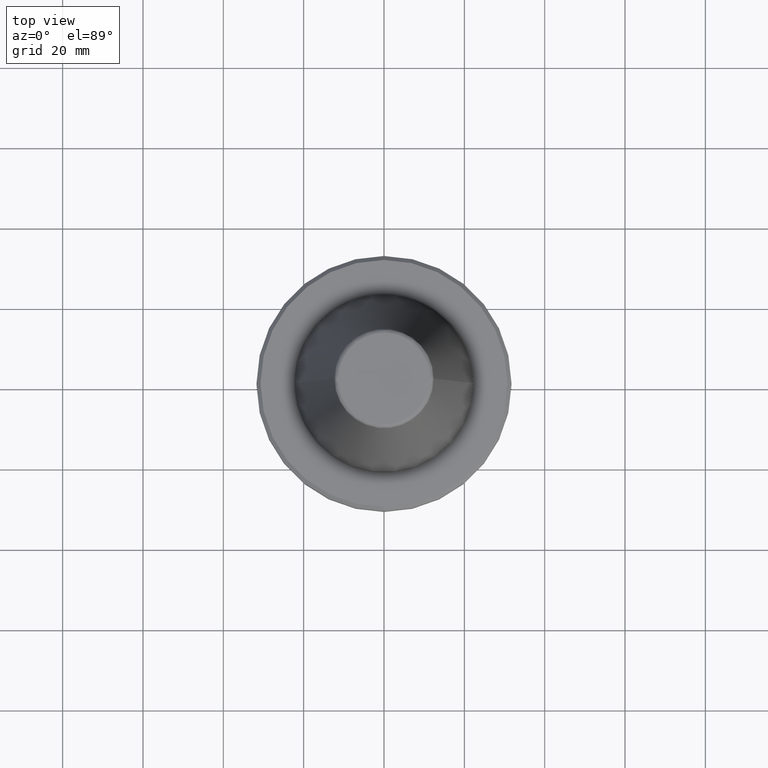
[diagram: clean part render]
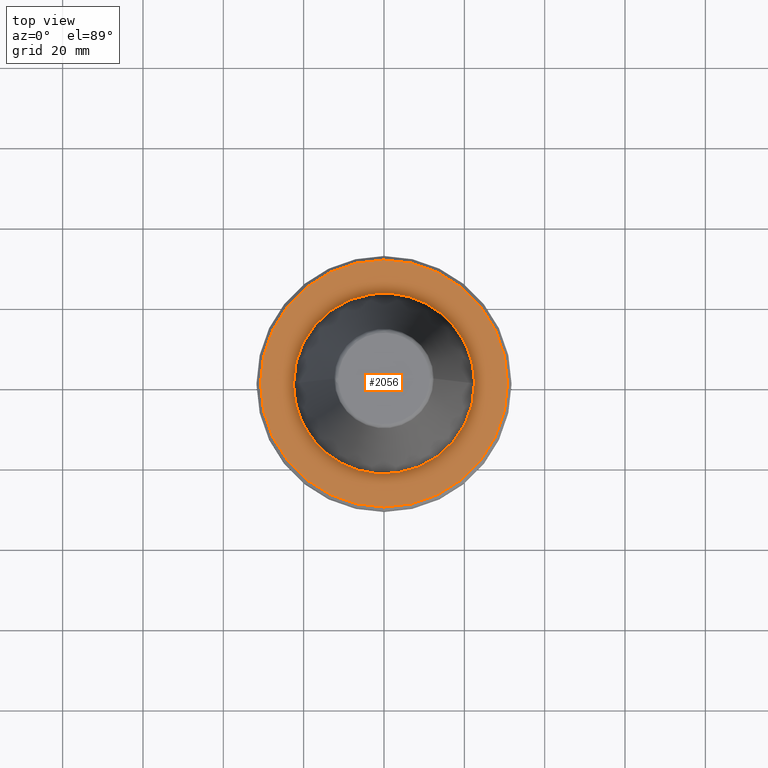
[diagram: same view with one face highlighted and labeled with its STEP entity id]
A machine part, top view. The second image highlights one B-rep face of the part: STEP entity #2056.
In plain terms, the highlighted planar face has unit normal (0, 0, 1).
Its self-contained STEP definition (entity closure, byte-faithful):
#1 = CARTESIAN_POINT ( 'NONE',  ( 14.22318295937180300, 17.43659746424819800, -3.200000000000000600 ) ) ;
#3 = EDGE_CURVE ( 'NONE', #1894, #1199, #2227, .T. ) ;
#7 = CARTESIAN_POINT ( 'NONE',  ( 1.874272475874807900, -22.49990891167531300, -3.199999999999999300 ) ) ;
#12 = CARTESIAN_POINT ( 'NONE',  ( -10.23608225737783100, -20.03737097317610600, -3.200000000000000600 ) ) ;
#22 = CARTESIAN_POINT ( 'NONE',  ( -18.01339103380583900, 13.48212992664963900, -3.200000000000000200 ) ) ;
#25 = CARTESIAN_POINT ( 'NONE',  ( -14.77594043886129600, -16.96826859199027000, -3.200000000000000600 ) ) ;
#30 = CARTESIAN_POINT ( 'NONE',  ( -19.65143601863855900, -10.96810366773100600, -3.200000000000000200 ) ) ;
#31 = CARTESIAN_POINT ( 'NONE',  ( -11.88795745103437800, 19.11175370232525900, -3.200000000000000600 ) ) ;
#39 = CARTESIAN_POINT ( 'NONE',  ( -21.56053025632894900, -6.433983443409778700, -3.200000000000000200 ) ) ;
#40 = CARTESIAN_POINT ( 'NONE',  ( 20.15581472172580400, 9.999824322189807500, -3.200000000000000600 ) ) ;
#42 = CARTESIAN_POINT ( 'NONE',  ( -21.73416896233421600, 5.823336603060638200, -3.200000000000001100 ) ) ;
#48 = CARTESIAN_POINT ( 'NONE',  ( -22.29881083994816000, -3.002206393018338000, -3.200000000000000200 ) ) ;
#51 = CARTESIAN_POINT ( 'NONE',  ( -15.80924125897873900, 16.01869097888760200, -3.200000000000000200 ) ) ;
#59 = CARTESIAN_POINT ( 'NONE',  ( -14.83168076082912800, 16.91956786132767100, -3.200000000000001100 ) ) ;
#75 = CARTESIAN_POINT ( 'NONE',  ( -17.52654519907798700, 14.13133141767754900, -3.200000000000000200 ) ) ;
#99 = CARTESIAN_POINT ( 'NONE',  ( -22.40251658625296500, 2.118301816843204400, -3.200000000000000600 ) ) ;
#113 = CARTESIAN_POINT ( 'NONE',  ( -1.874272475995127500, 22.49990891168126700, -3.200000000000000200 ) ) ;
#117 = DIRECTION ( 'NONE',  ( 1.000000000000000000, 0.0000000000000000000, 0.0000000000000000000 ) ) ;
#118 = CARTESIAN_POINT ( 'NONE',  ( -18.02676084524683400, 13.46424702288706000, -3.199999999999999700 ) ) ;
#120 = CARTESIAN_POINT ( 'NONE',  ( 20.21492483213524900, 9.879620109989831500, -3.199999999999999700 ) ) ;
#122 = CARTESIAN_POINT ( 'NONE',  ( -8.553837274049097800, 20.84572647129856200, -3.200000000000000600 ) ) ;
#126 = CARTESIAN_POINT ( 'NONE',  ( 20.88587219126078400, 8.411155772582882100, -3.199999999999999300 ) ) ;
#144 = CARTESIAN_POINT ( 'NONE',  ( 22.15105626390018400, 3.965161161150900800, -3.200000000000000600 ) ) ;
#146 = CARTESIAN_POINT ( 'NONE',  ( -18.18598887100287700, 13.24892083353980800, -3.200000000000000600 ) ) ;
#147 = CARTESIAN_POINT ( 'NONE',  ( 22.40251658625299300, -2.118301816863076900, -3.200000000000000600 ) ) ;
#148 = CARTESIAN_POINT ( 'NONE',  ( -5.923004140375720500, 21.70694875912321500, -3.200000000000001100 ) ) ;
#155 = CARTESIAN_POINT ( 'NONE',  ( -20.28558261285513700, 9.733848131031008300, -3.200000000000000200 ) ) ;
#158 = CARTESIAN_POINT ( 'NONE',  ( 21.61971726659115600, -6.232017541421557300, -3.200000000000000600 ) ) ;
#168 = CARTESIAN_POINT ( 'NONE',  ( -14.92426961778352300, 16.83806347620183200, -3.200000000000001100 ) ) ;
#172 = CARTESIAN_POINT ( 'NONE',  ( 19.91188554786599200, -10.50132822629440100, -3.200000000000000200 ) ) ;
#173 = CARTESIAN_POINT ( 'NONE',  ( -5.758433452790433700, 21.75072157107093300, -3.200000000000000600 ) ) ;
#177 = CARTESIAN_POINT ( 'NONE',  ( -11.24417045224493400, 19.49108947155319900, -3.200000000000000600 ) ) ;
#179 = CARTESIAN_POINT ( 'NONE',  ( 15.30853000358278800, -16.49149667822699800, -3.200000000000000200 ) ) ;
#184 = CARTESIAN_POINT ( 'NONE',  ( 10.63549455148346600, -19.82768002980847300, -3.200000000000000200 ) ) ;
#185 = CARTESIAN_POINT ( 'NONE',  ( -3.721873055559534700, 22.26913961060540000, -3.200000000000000600 ) ) ;
#191 = CARTESIAN_POINT ( 'NONE',  ( -16.77076916737731300, 15.03633683038554200, -3.199999999999999700 ) ) ;
#193 = CARTESIAN_POINT ( 'NONE',  ( -2.332296108668795200, -22.41354124015830300, -3.200000000000000600 ) ) ;
#199 = CIRCLE ( 'NONE', #367, 30.74999999999994300 ) ;
#200 = CARTESIAN_POINT ( 'NONE',  ( -10.48783044521363500, -19.90618404016972000, -3.200000000000000600 ) ) ;
#206 = CARTESIAN_POINT ( 'NONE',  ( -16.23569155790457700, -15.61257527347668500, -3.199999999999999700 ) ) ;
#207 = CARTESIAN_POINT ( 'NONE',  ( 4.741533393613382300, 21.99703006162735600, -3.200000000000000600 ) ) ;
#211 = CARTESIAN_POINT ( 'NONE',  ( -13.13908696945949100, 18.30062997010878000, -3.200000000000001500 ) ) ;
#212 = CARTESIAN_POINT ( 'NONE',  ( -20.08612291262865700, -10.13961104775827400, -3.200000000000000600 ) ) ;
#223 = CARTESIAN_POINT ( 'NONE',  ( -21.58879054375144000, -6.338307648393777200, -3.200000000000000200 ) ) ;
#226 = CARTESIAN_POINT ( 'NONE',  ( -5.756711388894503100E-034, 30.74999999999994300, -3.200000000000036100 ) ) ;
#228 = DIRECTION ( 'NONE',  ( -0.0000000000000000000, -0.0000000000000000000, 1.000000000000000000 ) ) ;
#230 = CARTESIAN_POINT ( 'NONE',  ( -22.49999999919336000, -1.000383764504606100, -3.200000000000000200 ) ) ;
#231 = CARTESIAN_POINT ( 'NONE',  ( 5.140381900332371000, 21.90551747792822100, -3.200000000000000200 ) ) ;
#233 = CARTESIAN_POINT ( 'NONE',  ( -20.22960712465749800, 9.849522785651704000, -3.199999999999998800 ) ) ;
#243 = CARTESIAN_POINT ( 'NONE',  ( 5.311069838244827100, 21.86426875342956300, -3.200000000000000200 ) ) ;
#250 = CARTESIAN_POINT ( 'NONE',  ( 5.424806877654088300, 21.83631870470369300, -3.199999999999999700 ) ) ;
#261 = CARTESIAN_POINT ( 'NONE',  ( -19.91188554789786400, 10.50132822623909400, -3.200000000000000600 ) ) ;
#270 = CARTESIAN_POINT ( 'NONE',  ( 10.41242643611770400, 19.94585433901944100, -3.199999999999999700 ) ) ;
#277 = CARTESIAN_POINT ( 'NONE',  ( -20.25523733294206600, 9.796732191912537900, -3.200000000000000600 ) ) ;
#302 = CARTESIAN_POINT ( 'NONE',  ( 10.53806154739550700, 19.87963742221595000, -3.200000000000001100 ) ) ;
#314 = CARTESIAN_POINT ( 'NONE',  ( 6.419245413021305200, 21.58404654974502500, -3.199999999999999700 ) ) ;
#318 = CARTESIAN_POINT ( 'NONE',  ( 10.48783044521770200, 19.90618404016638400, -3.200000000000000600 ) ) ;
#327 = CARTESIAN_POINT ( 'NONE',  ( 5.483412546092512100, 21.82167016724034500, -3.200000000000000200 ) ) ;
#333 = CARTESIAN_POINT ( 'NONE',  ( 19.02775738831001800, 12.04548653842064000, -3.199999999999999700 ) ) ;
#339 = CARTESIAN_POINT ( 'NONE',  ( 22.49999999919589700, -0.4998481605249319200, -3.200000000000000200 ) ) ;
#349 = CARTESIAN_POINT ( 'NONE',  ( 22.32901513827448200, -2.769788731456854300, -3.199999999999999700 ) ) ;
#350 = CARTESIAN_POINT ( 'NONE',  ( 14.65281326678369700, 17.07483769586197700, -3.199999999999999700 ) ) ;
#354 = CARTESIAN_POINT ( 'NONE',  ( -10.75335797333794300, 19.76411738108902200, -3.200000000000001500 ) ) ;
#357 = CARTESIAN_POINT ( 'NONE',  ( 21.60558163939284200, -6.280860069420926500, -3.199999999999999700 ) ) ;
#364 = CARTESIAN_POINT ( 'NONE',  ( 18.72493966947978800, -12.48418711725452300, -3.199999999999999700 ) ) ;
#367 = AXIS2_PLACEMENT_3D ( 'NONE', #1948, #736, #117 ) ;
#370 = CARTESIAN_POINT ( 'NONE',  ( -10.91772139295597900, 19.67420083194709700, -3.200000000000001500 ) ) ;
#372 = CARTESIAN_POINT ( 'NONE',  ( 14.92426961778294500, -16.83806347620072300, -3.199999999999999300 ) ) ;
#381 = CARTESIAN_POINT ( 'NONE',  ( -22.35533047126431300, 2.552739112904244900, -3.200000000000001500 ) ) ;
#384 = CARTESIAN_POINT ( 'NONE',  ( 9.786420264996936100, -20.28062197832261400, -3.200000000000000600 ) ) ;
#392 = CARTESIAN_POINT ( 'NONE',  ( -22.49999999919589300, 0.4998481605095854700, -3.200000000000000200 ) ) ;
#395 = CARTESIAN_POINT ( 'NONE',  ( -4.741533393562133500, -21.99703006163029100, -3.200000000000000600 ) ) ;
#399 = CARTESIAN_POINT ( 'NONE',  ( -10.56461004736860300, -19.86553988844373100, -3.200000000000001100 ) ) ;
#403 = CARTESIAN_POINT ( 'NONE',  ( -22.30501698071706300, 2.955741716252724900, -3.199999999999999700 ) ) ;
#405 = CARTESIAN_POINT ( 'NONE',  ( -17.57871437127655800, -14.04668318889522600, -3.200000000000000200 ) ) ;
#416 = CARTESIAN_POINT ( 'NONE',  ( -20.19036533987361500, -9.929748321284078500, -3.199999999999999700 ) ) ;
#420 = EDGE_CURVE ( 'NONE', #1741, #1791, #199, .T. ) ;
#424 = CARTESIAN_POINT ( 'NONE',  ( -21.59752482456317300, -6.308484701638014300, -3.200000000000000200 ) ) ;
#425 = CARTESIAN_POINT ( 'NONE',  ( -20.24217662106275400, 9.823661388711764500, -3.199999999999999700 ) ) ;
#430 = CARTESIAN_POINT ( 'NONE',  ( 19.94437700303745600, 10.41772339419467200, -3.200000000000000200 ) ) ;
#464 = CARTESIAN_POINT ( 'NONE',  ( -22.22580999400801700, 3.547457163382097700, -3.200000000000000600 ) ) ;
#482 = CARTESIAN_POINT ( 'NONE',  ( -21.60988920361091200, 6.266015010250704600, -3.199999999999999700 ) ) ;
#485 = CARTESIAN_POINT ( 'NONE',  ( 17.97034258003378000, 13.53945572718300000, -3.200000000000001100 ) ) ;
#492 = CARTESIAN_POINT ( 'NONE',  ( -21.60558163939252600, 6.280860069422327100, -3.199999999999999700 ) ) ;
#509 = CARTESIAN_POINT ( 'NONE',  ( -5.648564137900780000, 21.77950544200384200, -3.200000000000000600 ) ) ;
#515 = CARTESIAN_POINT ( 'NONE',  ( 22.23052028340220700, 3.476948730419060900, -3.200000000000000600 ) ) ;
#520 = CARTESIAN_POINT ( 'NONE',  ( -22.30910039441746700, 2.924754750446486800, -3.199999999999999700 ) ) ;
#524 = CARTESIAN_POINT ( 'NONE',  ( 14.71362546679636000, 17.02233411190585600, -3.199999999999999700 ) ) ;
#535 = CARTESIAN_POINT ( 'NONE',  ( 14.51035457523182300, 17.19652244138243100, -3.200000000000000200 ) ) ;
#539 = CARTESIAN_POINT ( 'NONE',  ( 21.59440449156983300, 6.319157460238690400, -3.200000000000000200 ) ) ;
#550 = CARTESIAN_POINT ( 'NONE',  ( 20.08612291260717700, 10.13961104778914000, -3.200000000000001100 ) ) ;
#559 = CARTESIAN_POINT ( 'NONE',  ( -18.09339059802132300, 13.37469992120816200, -3.200000000000000200 ) ) ;
#562 = CARTESIAN_POINT ( 'NONE',  ( 22.30910039441750600, -2.924754750447828800, -3.199999999999999700 ) ) ;
#566 = CARTESIAN_POINT ( 'NONE',  ( 21.11551803760863100, -7.816779927586186000, -3.200000000000001100 ) ) ;
#567 = CARTESIAN_POINT ( 'NONE',  ( 10.23608225738487600, 20.03737097316844300, -3.200000000000000600 ) ) ;
#579 = CARTESIAN_POINT ( 'NONE',  ( 18.18598887099113500, -13.24892083356091500, -3.200000000000000200 ) ) ;
#586 = CARTESIAN_POINT ( 'NONE',  ( 14.83168076083100900, -16.91956786132555700, -3.199999999999999700 ) ) ;
#592 = CARTESIAN_POINT ( 'NONE',  ( 7.063568000729573800, -21.37128580363595600, -3.200000000000001500 ) ) ;
#598 = CARTESIAN_POINT ( 'NONE',  ( -5.311069838226314800, -21.86426875343111200, -3.200000000000000600 ) ) ;
#606 = CARTESIAN_POINT ( 'NONE',  ( -12.43703474709162800, -18.78480249249335500, -3.200000000000000200 ) ) ;
#607 = CARTESIAN_POINT ( 'NONE',  ( 17.89591555997548200, 13.63782950775216700, -3.200000000000000600 ) ) ;
#615 = CARTESIAN_POINT ( 'NONE',  ( -22.31517690290563700, 2.878271283353485400, -3.199999999999999700 ) ) ;
#619 = CARTESIAN_POINT ( 'NONE',  ( -17.89591555997829900, -13.63782950774990800, -3.200000000000000200 ) ) ;
#620 = CARTESIAN_POINT ( 'NONE',  ( -22.50000000641071600, 0.0000000000000000000, -3.200000000159716400 ) ) ;
#621 = CARTESIAN_POINT ( 'NONE',  ( -22.30323104748382000, 2.969202804309478700, -3.200000000000000200 ) ) ;
#622 = CARTESIAN_POINT ( 'NONE',  ( -20.21492483213616300, -9.879620109988959300, -3.200000000000001100 ) ) ;
#633 = CARTESIAN_POINT ( 'NONE',  ( -21.96483018103506500, -4.935554114648014400, -3.199999999999999700 ) ) ;
#646 = CARTESIAN_POINT ( 'NONE',  ( -14.14900744956021400, 17.51546301033353700, -3.200000000000000200 ) ) ;
#654 = CARTESIAN_POINT ( 'NONE',  ( 12.43703474703750300, 18.78480249253791000, -3.200000000000001500 ) ) ;
#661 = CARTESIAN_POINT ( 'NONE',  ( -22.32901513827445700, 2.769788731451030600, -3.200000000000001100 ) ) ;
#674 = CARTESIAN_POINT ( 'NONE',  ( -18.72493966952148600, 12.48418711718152700, -3.200000000000000600 ) ) ;
#704 = CARTESIAN_POINT ( 'NONE',  ( 21.58035118186256100, 6.367025658459867000, -3.200000000000000200 ) ) ;
#715 = CARTESIAN_POINT ( 'NONE',  ( 21.96483018104634900, 4.935554114577803900, -3.199999999999999700 ) ) ;
#723 = CARTESIAN_POINT ( 'NONE',  ( -20.46402228711740900, 9.355164251941484800, -3.200000000000000600 ) ) ;
#736 = DIRECTION ( 'NONE',  ( -0.0000000000000000000, -0.0000000000000000000, 1.000000000000000000 ) ) ;
#747 = CARTESIAN_POINT ( 'NONE',  ( 20.50428651669006500, 9.286150008026254500, -3.200000000000000200 ) ) ;
#751 = CARTESIAN_POINT ( 'NONE',  ( 17.57871437126291900, 14.04668318890786700, -3.200000000000000200 ) ) ;
#752 = DIRECTION ( 'NONE',  ( 0.0000000000000000000, 0.0000000000000000000, 1.000000000000000000 ) ) ;
#754 = AXIS2_PLACEMENT_3D ( 'NONE', #1561, #752, #2089 ) ;
#759 = CARTESIAN_POINT ( 'NONE',  ( 22.30323104748391900, -2.969202804309083500, -3.200000000000000200 ) ) ;
#773 = CARTESIAN_POINT ( 'NONE',  ( 20.46402228711995300, -9.355164251943115500, -3.200000000000000600 ) ) ;
#782 = CARTESIAN_POINT ( 'NONE',  ( -21.63439821965730700, 6.181008859016907700, -3.200000000000000200 ) ) ;
#784 = CARTESIAN_POINT ( 'NONE',  ( 18.04679433939720900, -13.43740983664695100, -3.199999999999999700 ) ) ;
#789 = CARTESIAN_POINT ( 'NONE',  ( 14.14900744958177000, -17.51546301032290000, -3.199999999999999300 ) ) ;
#796 = CARTESIAN_POINT ( 'NONE',  ( 5.923004140368316700, -21.70694875912746400, -3.199999999999999300 ) ) ;
#806 = CARTESIAN_POINT ( 'NONE',  ( -5.483412546089590800, -21.82167016724028100, -3.200000000000000600 ) ) ;
#810 = CARTESIAN_POINT ( 'NONE',  ( -14.86875192379157600, 16.88699891330396600, -3.200000000000000200 ) ) ;
#812 = CARTESIAN_POINT ( 'NONE',  ( -14.22318295939440900, -17.43659746422975900, -3.200000000000000200 ) ) ;
#814 = CARTESIAN_POINT ( 'NONE',  ( 21.43799043155111800, 6.834304807764141300, -3.200000000000000200 ) ) ;
#816 = AXIS2_PLACEMENT_3D ( 'NONE', #1443, #228, #1644 ) ;
#820 = CARTESIAN_POINT ( 'NONE',  ( -17.97034258003366200, -13.53945572718357600, -3.200000000000000600 ) ) ;
#829 = CARTESIAN_POINT ( 'NONE',  ( -20.50428651669568600, -9.286150007985938300, -3.200000000000000200 ) ) ;
#838 = CARTESIAN_POINT ( 'NONE',  ( -22.23052028339726100, -3.476948730449991800, -3.200000000000000200 ) ) ;
#874 = CARTESIAN_POINT ( 'NONE',  ( 22.50000000641071900, 0.0000000000000000000, -3.200000000159716400 ) ) ;
#894 = CARTESIAN_POINT ( 'NONE',  ( -10.61329201338492800, 19.83957615112809600, -3.200000000000000200 ) ) ;
#919 = CARTESIAN_POINT ( 'NONE',  ( 22.29881083994823500, 3.002206393018049400, -3.200000000000000200 ) ) ;
#926 = CARTESIAN_POINT ( 'NONE',  ( 14.77594043886396600, 16.96826859198786500, -3.200000000000000200 ) ) ;
#932 = CARTESIAN_POINT ( 'NONE',  ( -19.39917049589099200, 11.43771765444180000, -3.200000000000000600 ) ) ;
#943 = CARTESIAN_POINT ( 'NONE',  ( 19.65143601856812700, 10.96810366783328000, -3.200000000000000200 ) ) ;
#966 = ORIENTED_EDGE ( 'NONE', *, *, #2074, .T. ) ;
#968 = CARTESIAN_POINT ( 'NONE',  ( 22.08189315382962200, -4.382165080182418600, -3.200000000000000200 ) ) ;
#969 = CARTESIAN_POINT ( 'NONE',  ( 9.881787936587739900, 20.21621465543382700, -3.199999999999999300 ) ) ;
#974 = CARTESIAN_POINT ( 'NONE',  ( 20.28558261285654800, -9.733848131029979800, -3.199999999999999700 ) ) ;
#975 = CARTESIAN_POINT ( 'NONE',  ( 22.50000000641071900, 0.0000000000000000000, -3.200000000159716400 ) ) ;
#981 = CARTESIAN_POINT ( 'NONE',  ( 18.01339103380665600, -13.48212992664895400, -3.200000000000000600 ) ) ;
#985 = CARTESIAN_POINT ( 'NONE',  ( 21.59752482456337600, 6.308484701637588900, -3.200000000000000200 ) ) ;
#998 = CARTESIAN_POINT ( 'NONE',  ( 11.88795745106215300, -19.11175370231238400, -3.200000000000000600 ) ) ;
#999 = CARTESIAN_POINT ( 'NONE',  ( 22.29616357265424400, 3.021808917416004500, -3.200000000000001100 ) ) ;
#1004 = CARTESIAN_POINT ( 'NONE',  ( 5.648564137901366200, -21.77950544200438500, -3.200000000000000200 ) ) ;
#1005 = CARTESIAN_POINT ( 'NONE',  ( 7.711055038523093200, 21.17196834011369700, -3.200000000000000600 ) ) ;
#1011 = CARTESIAN_POINT ( 'NONE',  ( -7.711055038501887900, -21.17196834014142900, -3.200000000000000600 ) ) ;
#1012 = EDGE_CURVE ( 'NONE', #1791, #1741, #1979, .T. ) ;
#1013 = CARTESIAN_POINT ( 'NONE',  ( 21.52037208074880300, 6.567695392561622800, -3.200000000000000200 ) ) ;
#1019 = CARTESIAN_POINT ( 'NONE',  ( -14.65281326678848500, -17.07483769585818200, -3.200000000000001100 ) ) ;
#1021 = CARTESIAN_POINT ( 'NONE',  ( 18.42838142868397000, 12.92888155317011600, -3.199999999999999300 ) ) ;
#1033 = CARTESIAN_POINT ( 'NONE',  ( -17.99330653952113600, -13.50892372554258900, -3.200000000000000600 ) ) ;
#1038 = CARTESIAN_POINT ( 'NONE',  ( -21.26496594100585500, -7.364265705773187100, -3.200000000000000200 ) ) ;
#1043 = CARTESIAN_POINT ( 'NONE',  ( -22.28414685093515100, -3.109469927496040200, -3.200000000000000600 ) ) ;
#1055 = CARTESIAN_POINT ( 'NONE',  ( -15.05318755060263300, 16.72330668416406100, -3.200000000000000600 ) ) ;
#1100 = CARTESIAN_POINT ( 'NONE',  ( 21.26496594099798900, 7.364265705826855200, -3.199999999999998800 ) ) ;
#1116 = EDGE_LOOP ( 'NONE', ( #1374, #966 ) ) ;
#1127 = CARTESIAN_POINT ( 'NONE',  ( 10.56461004737239900, 19.86553988844142500, -3.200000000000001100 ) ) ;
#1137 = CARTESIAN_POINT ( 'NONE',  ( 20.20510947198333800, 9.899676612741707500, -3.200000000000000600 ) ) ;
#1145 = EDGE_LOOP ( 'NONE', ( #1876, #2165 ) ) ;
#1146 = CARTESIAN_POINT ( 'NONE',  ( 0.9371362379998190400, 22.50004554368846500, -3.200000000000000600 ) ) ;
#1147 = CARTESIAN_POINT ( 'NONE',  ( 20.22035085952075000, 9.868509945309973800, -3.200000000000000200 ) ) ;
#1157 = CARTESIAN_POINT ( 'NONE',  ( 22.50000000641071900, 0.0000000000000000000, -3.200000000159716400 ) ) ;
#1161 = CARTESIAN_POINT ( 'NONE',  ( 21.73416896233324600, -5.823336603055736300, -3.200000000000000600 ) ) ;
#1169 = CARTESIAN_POINT ( 'NONE',  ( -21.11551803760422500, 7.816779927579642800, -3.200000000000000600 ) ) ;
#1172 = CARTESIAN_POINT ( 'NONE',  ( 20.24217662106385200, -9.823661388710041500, -3.200000000000000600 ) ) ;
#1181 = CARTESIAN_POINT ( 'NONE',  ( 17.52654519906372600, -14.13133141768188100, -3.200000000000000200 ) ) ;
#1183 = CARTESIAN_POINT ( 'NONE',  ( -6.305369418163677700, 21.60063315907345700, -3.200000000000001500 ) ) ;
#1190 = CARTESIAN_POINT ( 'NONE',  ( 10.91772139296722000, -19.67420083194171100, -3.199999999999998800 ) ) ;
#1195 = CARTESIAN_POINT ( 'NONE',  ( 3.721873055537444900, -22.26913961059909000, -3.199999999999999700 ) ) ;
#1199 = VERTEX_POINT ( 'NONE', #874 ) ;
#1206 = CARTESIAN_POINT ( 'NONE',  ( -9.881787936576964500, -20.21621465544685800, -3.199999999999999700 ) ) ;
#1215 = CARTESIAN_POINT ( 'NONE',  ( -14.75411326126291400, -16.98725328288349700, -3.200000000000001100 ) ) ;
#1216 = CARTESIAN_POINT ( 'NONE',  ( -5.595229928346388000, 21.79327207916285800, -3.200000000000000200 ) ) ;
#1219 = CARTESIAN_POINT ( 'NONE',  ( -22.47511061226608900, 1.248074988851190200, -3.199999999999999300 ) ) ;
#1220 = CARTESIAN_POINT ( 'NONE',  ( -19.02775738840408300, -12.04548653828380200, -3.199999999999999700 ) ) ;
#1222 = CARTESIAN_POINT ( 'NONE',  ( -7.063568000762114000, 21.37128580362015400, -3.200000000000000600 ) ) ;
#1231 = CARTESIAN_POINT ( 'NONE',  ( -21.52037208075106600, -6.567695392545566300, -3.200000000000000200 ) ) ;
#1233 = CARTESIAN_POINT ( 'NONE',  ( -15.30853000359249300, 16.49149667822430800, -3.200000000000000600 ) ) ;
#1242 = CARTESIAN_POINT ( 'NONE',  ( -22.29616357265377900, -3.021808917418959500, -3.200000000000001100 ) ) ;
#1244 = CARTESIAN_POINT ( 'NONE',  ( -10.63549455147861500, 19.82768002981097400, -3.199999999999999700 ) ) ;
#1247 = CARTESIAN_POINT ( 'NONE',  ( -18.04679433939892500, 13.43740983664325800, -3.200000000000000600 ) ) ;
#1253 = CARTESIAN_POINT ( 'NONE',  ( 3.941529773815695600, 22.16111746850145900, -3.200000000000001500 ) ) ;
#1281 = CARTESIAN_POINT ( 'NONE',  ( -18.36880843991303200, 12.99592563101052200, -3.200000000000000600 ) ) ;
#1313 = B_SPLINE_CURVE_WITH_KNOTS ( 'NONE', 3,
 ( #1157, #339, #1358, #147, #1572, #349, #1755, #562, #1929, #759, #2094, #968, #2260, #1161, #2411, #1372, #158, #1579, #357, #1767, #566, #1936, #773, #2101, #974, #2268, #1172, #2419, #1384, #172, #1587, #364, #1777, #579, #1942, #784, #2113, #981, #2275, #1181, #2425, #1390, #179, #1599, #372, #1783, #586, #1949, #789, #2120, #998, #2278, #1190, #2434, #1399, #184, #1608, #384, #1789, #592, #1958, #796, #2125, #1004, #2286, #1195, #7, #1407, #193, #1611, #395, #1798, #598, #1963, #806, #2132, #1011, #2292, #1206, #12, #1413, #200, #1618, #399, #1804, #606, #1968, #812, #2141, #1019, #2296, #1215, #25, #1419, #206, #1628, #405, #1809, #619, #1977, #820, #2146, #1033, #2304, #1220, #30, #1431, #212, #1634, #416, #1818, #622, #1984, #829, #2149, #1038, #2311, #1231, #39, #1439, #223, #1639, #424, #1828, #633, #1987, #838, #2160, #1043, #2317, #1242, #48, #1448, #230, #1652 ),
 .UNSPECIFIED., .F., .F.,
 ( 4, 1, 1, 1, 1, 1, 2, 2, 1, 1, 1, 1, 1, 2, 2, 1, 1, 1, 1, 1, 1, 2, 2, 1, 1, 1, 1, 1, 1, 2, 2, 1, 1, 1, 1, 1, 2, 2, 1, 1, 1, 1, 1, 2, 2, 1, 1, 1, 1, 2, 2, 2, 1, 1, 1, 1, 2, 2, 1, 1, 1, 1, 1, 2, 2, 1, 1, 1, 1, 1, 2, 2, 1, 1, 1, 1, 1, 1, 2, 2, 1, 1, 1, 1, 1, 1, 2, 2, 1, 1, 1, 1, 1, 1, 2, 2, 1, 1, 1, 1, 1, 2, 2, 4 ),
 ( 0.0000000000000000000, 0.03125000000000349000, 0.04687500000000521800, 0.05468750000000608500, 0.05859375000000652900, 0.06054687500000677200, 0.06152343750000689700, 0.06250000000000703600, 0.09375000000001144900, 0.1093750000000136000, 0.1171875000000146400, 0.1210937500000151400, 0.1230468750000153800, 0.1240234375000154700, 0.1250000000000155700, 0.1562500000000185700, 0.1718750000000201500, 0.1796875000000209000, 0.1835937500000212600, 0.1855468750000214800, 0.1865234375000215900, 0.1870117187500216500, 0.1875000000000217000, 0.2187500000000246700, 0.2343750000000261700, 0.2421875000000269500, 0.2460937500000273400, 0.2480468750000275100, 0.2490234375000275900, 0.2495117187500276200, 0.2500000000000276400, 0.2812500000000292000, 0.2968750000000299200, 0.3046875000000303600, 0.3085937500000305300, 0.3105468750000305900, 0.3115234375000306400, 0.3125000000000307000, 0.3437500000000292000, 0.3593750000000284200, 0.3671875000000280300, 0.3710937500000278700, 0.3730468750000277600, 0.3740234375000277000, 0.3750000000000275900, 0.4062500000000245400, 0.4218750000000230400, 0.4296875000000223200, 0.4335937500000218700, 0.4355468750000216500, 0.4375000000000214300, 0.5000000000000146500, 0.5312500000000112100, 0.5468750000000095500, 0.5546875000000087700, 0.5585937500000083300, 0.5605468750000081000, 0.5625000000000078800, 0.5937500000000048800, 0.6093750000000034400, 0.6171875000000026600, 0.6210937500000022200, 0.6230468750000020000, 0.6240234375000020000, 0.6250000000000020000, 0.6562500000000012200, 0.6718750000000008900, 0.6796875000000006700, 0.6835937500000006700, 0.6855468750000006700, 0.6865234375000006700, 0.6875000000000006700, 0.7187500000000006700, 0.7343750000000006700, 0.7421875000000006700, 0.7460937500000006700, 0.7480468750000006700, 0.7490234375000006700, 0.7495117187500005600, 0.7500000000000004400, 0.7812500000000000000, 0.7968749999999996700, 0.8046874999999995600, 0.8085937499999993300, 0.8105468749999993300, 0.8115234374999993300, 0.8120117187499994400, 0.8124999999999994400, 0.8437500000000000000, 0.8593750000000002200, 0.8671875000000001100, 0.8710937500000001100, 0.8730468750000001100, 0.8740234375000001100, 0.8745117187500002200, 0.8750000000000002200, 0.9062499999999998900, 0.9218749999999996700, 0.9296874999999996700, 0.9335937499999996700, 0.9355468749999996700, 0.9365234374999996700, 0.9374999999999996700, 1.000000000000000000 ),
 .UNSPECIFIED. ) ;
#1323 = CARTESIAN_POINT ( 'NONE',  ( 17.94806086030286000, 13.56901131300374400, -3.199999999999999300 ) ) ;
#1331 = CARTESIAN_POINT ( 'NONE',  ( -18.00739773060977500, 13.49013544640815000, -3.199999999999999300 ) ) ;
#1334 = CARTESIAN_POINT ( 'NONE',  ( 21.56053025632794400, 6.433983443417580400, -3.200000000000000600 ) ) ;
#1344 = CARTESIAN_POINT ( 'NONE',  ( -20.69225650555742700, 8.846573709688208000, -3.200000000000000200 ) ) ;
#1353 = CARTESIAN_POINT ( 'NONE',  ( -21.42138751393022700, 6.912477775597409400, -3.200000000000000200 ) ) ;
#1358 = CARTESIAN_POINT ( 'NONE',  ( 22.47511061226610400, -1.248074988877973400, -3.199999999999999300 ) ) ;
#1372 = CARTESIAN_POINT ( 'NONE',  ( 21.63439821965730300, -6.181008859014649900, -3.200000000000000600 ) ) ;
#1374 = ORIENTED_EDGE ( 'NONE', *, *, #3, .T. ) ;
#1384 = CARTESIAN_POINT ( 'NONE',  ( 20.22960712465898300, -9.849522785648787200, -3.200000000000000600 ) ) ;
#1390 = CARTESIAN_POINT ( 'NONE',  ( 15.80924125895995900, -16.01869097889402800, -3.199999999999999700 ) ) ;
#1399 = CARTESIAN_POINT ( 'NONE',  ( 10.68267245994184100, -19.80230180263504600, -3.200000000000001100 ) ) ;
#1407 = CARTESIAN_POINT ( 'NONE',  ( -0.9371362379337095900, -22.50004554369144600, -3.200000000000000600 ) ) ;
#1411 = CARTESIAN_POINT ( 'NONE',  ( -10.68267245993587300, 19.80230180263804800, -3.199999999999999300 ) ) ;
#1413 = CARTESIAN_POINT ( 'NONE',  ( -10.41242643611272600, -19.94585433902412000, -3.200000000000000200 ) ) ;
#1419 = CARTESIAN_POINT ( 'NONE',  ( -15.38908402112750900, -16.43321326771396000, -3.200000000000000600 ) ) ;
#1431 = CARTESIAN_POINT ( 'NONE',  ( -19.94437700307820900, -10.41772339413566500, -3.199999999999999300 ) ) ;
#1434 = CARTESIAN_POINT ( 'NONE',  ( -21.61971726659100000, 6.232017541423402900, -3.200000000000000600 ) ) ;
#1439 = CARTESIAN_POINT ( 'NONE',  ( -21.58035118186293400, -6.367025658456400400, -3.200000000000000200 ) ) ;
#1443 = CARTESIAN_POINT ( 'NONE',  ( 0.0000000000000000000, 0.0000000000000000000, -3.200000000000036100 ) ) ;
#1448 = CARTESIAN_POINT ( 'NONE',  ( -22.43362831534153300, -1.995958985729735500, -3.199999999999999700 ) ) ;
#1471 = CARTESIAN_POINT ( 'NONE',  ( 11.34424317750453200, 19.44978238424075200, -3.200000000000000200 ) ) ;
#1517 = CARTESIAN_POINT ( 'NONE',  ( 22.26684003767198000, 3.232088526548532800, -3.200000000000000200 ) ) ;
#1546 = CARTESIAN_POINT ( 'NONE',  ( 9.166775441667470000, 20.55714367583427200, -3.200000000000001100 ) ) ;
#1558 = CARTESIAN_POINT ( 'NONE',  ( -21.85920747580418300, 5.344809650823245700, -3.199999999999999700 ) ) ;
#1561 = CARTESIAN_POINT ( 'NONE',  ( -29.65760573300000400, -30.95132634999999900, -3.200000000000000200 ) ) ;
#1569 = CARTESIAN_POINT ( 'NONE',  ( -14.81469283172291200, 16.93444828753327900, -3.200000000000000600 ) ) ;
#1572 = CARTESIAN_POINT ( 'NONE',  ( 22.35533047126433800, -2.552739112915592700, -3.200000000000000200 ) ) ;
#1579 = CARTESIAN_POINT ( 'NONE',  ( 21.60988920361117500, -6.266015010249150300, -3.200000000000000600 ) ) ;
#1587 = CARTESIAN_POINT ( 'NONE',  ( 19.39917049583459300, -11.43771765454004300, -3.199999999999999700 ) ) ;
#1589 = CARTESIAN_POINT ( 'NONE',  ( 21.58879054375135500, 6.338307648395313800, -3.199999999999998800 ) ) ;
#1599 = CARTESIAN_POINT ( 'NONE',  ( 15.05318755059878400, -16.72330668416433900, -3.199999999999999300 ) ) ;
#1608 = CARTESIAN_POINT ( 'NONE',  ( 10.61329201338950600, -19.83957615112569100, -3.199999999999999300 ) ) ;
#1611 = CARTESIAN_POINT ( 'NONE',  ( -3.941529773730368700, -22.16111746850581500, -3.199999999999999700 ) ) ;
#1618 = CARTESIAN_POINT ( 'NONE',  ( -10.53806154739207000, -19.87963742221835900, -3.199999999999999700 ) ) ;
#1628 = CARTESIAN_POINT ( 'NONE',  ( -17.14423442167521500, -14.58100679753345700, -3.200000000000000200 ) ) ;
#1629 = CARTESIAN_POINT ( 'NONE',  ( 22.29138125722061800, 3.056878707076627200, -3.200000000000000200 ) ) ;
#1634 = CARTESIAN_POINT ( 'NONE',  ( -20.15581472173652600, -9.999824322174628600, -3.200000000000000200 ) ) ;
#1639 = CARTESIAN_POINT ( 'NONE',  ( -21.59440449156973000, -6.319157460238435500, -3.199999999999999700 ) ) ;
#1644 = DIRECTION ( 'NONE',  ( 1.000000000000000000, 0.0000000000000000000, 0.0000000000000000000 ) ) ;
#1652 = CARTESIAN_POINT ( 'NONE',  ( -22.50000000641071600, 0.0000000000000000000, -3.200000000159716400 ) ) ;
#1662 = CARTESIAN_POINT ( 'NONE',  ( 13.63982279662687700, 17.90356963727902700, -3.200000000000000200 ) ) ;
#1708 = CARTESIAN_POINT ( 'NONE',  ( -22.50000000641071600, 0.0000000000000000000, -3.200000000159716400 ) ) ;
#1724 = CARTESIAN_POINT ( 'NONE',  ( 16.23569155787188800, 15.61257527350783300, -3.199999999999999700 ) ) ;
#1741 = VERTEX_POINT ( 'NONE', #1810 ) ;
#1755 = CARTESIAN_POINT ( 'NONE',  ( 22.31517690290570100, -2.878271283356217400, -3.199999999999999700 ) ) ;
#1767 = CARTESIAN_POINT ( 'NONE',  ( 21.42138751393286700, -6.912477775600662800, -3.200000000000000600 ) ) ;
#1777 = CARTESIAN_POINT ( 'NONE',  ( 18.36880843988949900, -12.99592563105206900, -3.199999999999999700 ) ) ;
#1783 = CARTESIAN_POINT ( 'NONE',  ( 14.86875192379246400, -16.88699891330225700, -3.200000000000000200 ) ) ;
#1787 = CARTESIAN_POINT ( 'NONE',  ( -20.23345712605062700, 9.841609494354113300, -3.200000000000000200 ) ) ;
#1789 = CARTESIAN_POINT ( 'NONE',  ( 8.553837274004292700, -20.84572647131976500, -3.200000000000000600 ) ) ;
#1791 = VERTEX_POINT ( 'NONE', #226 ) ;
#1798 = CARTESIAN_POINT ( 'NONE',  ( -5.140381900303267100, -21.90551747793020700, -3.200000000000000200 ) ) ;
#1804 = CARTESIAN_POINT ( 'NONE',  ( -11.34424317753422400, -19.44978238421590400, -3.200000000000000600 ) ) ;
#1809 = CARTESIAN_POINT ( 'NONE',  ( -17.79100647550621900, -13.77488654190946200, -3.200000000000000200 ) ) ;
#1810 = CARTESIAN_POINT ( 'NONE',  ( 3.827021247335470200E-015, -30.74999999999994300, -3.200000000000036100 ) ) ;
#1818 = CARTESIAN_POINT ( 'NONE',  ( -20.20510947198590700, -9.899676612738398200, -3.199999999999998800 ) ) ;
#1828 = CARTESIAN_POINT ( 'NONE',  ( -21.75841117770821500, -5.756979089492685600, -3.199999999999999700 ) ) ;
#1876 = ORIENTED_EDGE ( 'NONE', *, *, #1012, .T. ) ;
#1890 = CARTESIAN_POINT ( 'NONE',  ( 17.98518233404910300, 13.51973820912787800, -3.199999999999999300 ) ) ;
#1894 = VERTEX_POINT ( 'NONE', #1708 ) ;
#1917 = CARTESIAN_POINT ( 'NONE',  ( 17.99330653952330300, 13.50892372553961500, -3.200000000000000600 ) ) ;
#1918 = PLANE ( 'NONE',  #754 ) ;
#1927 = CARTESIAN_POINT ( 'NONE',  ( -21.66822578698526400, 6.061901245909756300, -3.200000000000000200 ) ) ;
#1929 = CARTESIAN_POINT ( 'NONE',  ( 22.30501698071712000, -2.955741716253125900, -3.200000000000000200 ) ) ;
#1936 = CARTESIAN_POINT ( 'NONE',  ( 20.69225650556105800, -8.846573709692494300, -3.199999999999999300 ) ) ;
#1942 = CARTESIAN_POINT ( 'NONE',  ( 18.09339059801616800, -13.37469992121785900, -3.200000000000000200 ) ) ;
#1945 = FACE_BOUND ( 'NONE', #1116, .T. ) ;
#1948 = CARTESIAN_POINT ( 'NONE',  ( 0.0000000000000000000, 0.0000000000000000000, -3.200000000000036100 ) ) ;
#1949 = CARTESIAN_POINT ( 'NONE',  ( 14.81469283172524100, -16.93444828753098400, -3.200000000000000200 ) ) ;
#1958 = CARTESIAN_POINT ( 'NONE',  ( 6.305369418146367100, -21.60063315908226000, -3.200000000000000600 ) ) ;
#1963 = CARTESIAN_POINT ( 'NONE',  ( -5.424806877642875900, -21.83631870470491900, -3.199999999999999300 ) ) ;
#1968 = CARTESIAN_POINT ( 'NONE',  ( -13.63982279666705800, -17.90356963724611500, -3.199999999999998800 ) ) ;
#1977 = CARTESIAN_POINT ( 'NONE',  ( -17.94806086030365900, -13.56901131300347500, -3.200000000000000200 ) ) ;
#1979 = CIRCLE ( 'NONE', #816, 30.74999999999994300 ) ;
#1984 = CARTESIAN_POINT ( 'NONE',  ( -20.22035085951986100, -9.868509945312212000, -3.199999999999999700 ) ) ;
#1987 = CARTESIAN_POINT ( 'NONE',  ( -22.15105626389173200, -3.965161161203596400, -3.199999999999999700 ) ) ;
#2051 = FACE_OUTER_BOUND ( 'NONE', #1145, .T. ) ;
#2055 = CARTESIAN_POINT ( 'NONE',  ( 22.43362831534154000, 1.995958985715954100, -3.200000000000000200 ) ) ;
#2056 = ADVANCED_FACE ( 'NONE', ( #1945, #2051 ), #1918, .T. ) ;
#2057 = CARTESIAN_POINT ( 'NONE',  ( 2.332296108781459800, 22.41354124015296600, -3.200000000000001500 ) ) ;
#2062 = CARTESIAN_POINT ( 'NONE',  ( 17.14423442165091400, 14.58100679755637700, -3.200000000000000200 ) ) ;
#2070 = CARTESIAN_POINT ( 'NONE',  ( 22.28414685093658000, 3.109469927487109200, -3.200000000000000600 ) ) ;
#2074 = EDGE_CURVE ( 'NONE', #1199, #1894, #1313, .T. ) ;
#2089 = DIRECTION ( 'NONE',  ( 1.000000000000000000, 0.0000000000000000000, -0.0000000000000000000 ) ) ;
#2094 = CARTESIAN_POINT ( 'NONE',  ( 22.22580999400640100, -3.547457163376535000, -3.200000000000000600 ) ) ;
#2095 = CARTESIAN_POINT ( 'NONE',  ( 14.75411326126297400, 16.98725328288331900, -3.200000000000001100 ) ) ;
#2101 = CARTESIAN_POINT ( 'NONE',  ( 20.34575431479506200, -9.607882935867792200, -3.200000000000000600 ) ) ;
#2113 = CARTESIAN_POINT ( 'NONE',  ( 18.02676084524662400, -13.46424702288813600, -3.199999999999999300 ) ) ;
#2120 = CARTESIAN_POINT ( 'NONE',  ( 13.13908696949513600, -18.30062997009214200, -3.200000000000000600 ) ) ;
#2125 = CARTESIAN_POINT ( 'NONE',  ( 5.758433452787758500, -21.75072157107299400, -3.200000000000000200 ) ) ;
#2132 = CARTESIAN_POINT ( 'NONE',  ( -6.419245413007610400, -21.58404654976122900, -3.199999999999999700 ) ) ;
#2141 = CARTESIAN_POINT ( 'NONE',  ( -14.51035457524297100, -17.19652244137341100, -3.200000000000000200 ) ) ;
#2146 = CARTESIAN_POINT ( 'NONE',  ( -17.98518233404839600, -13.51973820912903600, -3.199999999999999700 ) ) ;
#2149 = CARTESIAN_POINT ( 'NONE',  ( -20.88587219127126800, -8.411155772511060400, -3.199999999999999700 ) ) ;
#2160 = CARTESIAN_POINT ( 'NONE',  ( -22.26684003766930800, -3.232088526565329200, -3.200000000000000200 ) ) ;
#2165 = ORIENTED_EDGE ( 'NONE', *, *, #420, .T. ) ;
#2227 = B_SPLINE_CURVE_WITH_KNOTS ( 'NONE', 3,
 ( #620, #392, #1219, #99, #381, #661, #615, #520, #403, #621, #464, #2417, #1558, #42, #1927, #782, #1434, #482, #492, #1353, #1169, #1344, #723, #2277, #155, #277, #425, #1787, #233, #261, #932, #674, #1281, #146, #559, #1247, #118, #22, #1331, #75, #191, #51, #1233, #1055, #168, #810, #59, #1569, #646, #211, #31, #177, #370, #354, #1411, #1244, #894, #2399, #122, #1222, #1183, #148, #173, #509, #1216, #185, #113, #1146, #2057, #1253, #207, #231, #243, #250, #327, #314, #1005, #1546, #969, #567, #270, #318, #302, #1127, #1471, #654, #1662, #1, #535, #350, #524, #2095, #926, #2297, #1724, #2062, #751, #2244, #607, #1323, #485, #1890, #1917, #1021, #333, #943, #430, #550, #40, #2242, #1137, #120, #1147, #747, #126, #1100, #814, #1013, #1334, #704, #1589, #539, #985, #2251, #715, #144, #515, #1517, #2070, #1629, #999, #919, #2055, #2318, #975 ),
 .UNSPECIFIED., .F., .F.,
 ( 4, 1, 1, 1, 1, 1, 2, 2, 1, 1, 1, 1, 1, 2, 2, 1, 1, 1, 1, 1, 1, 2, 2, 1, 1, 1, 1, 1, 1, 2, 2, 1, 1, 1, 1, 1, 2, 2, 1, 1, 1, 1, 1, 2, 2, 1, 1, 1, 1, 2, 2, 2, 1, 1, 1, 1, 2, 2, 1, 1, 1, 1, 1, 2, 2, 1, 1, 1, 1, 1, 2, 2, 1, 1, 1, 1, 1, 1, 2, 2, 1, 1, 1, 1, 1, 1, 2, 2, 1, 1, 1, 1, 1, 1, 2, 2, 1, 1, 1, 1, 1, 2, 2, 4 ),
 ( 0.0000000000000000000, 0.03125000000000527400, 0.04687500000000790300, 0.05468750000000921500, 0.05859375000000987400, 0.06054687500001021400, 0.06152343750001037400, 0.06250000000001053300, 0.09375000000001515500, 0.1093750000000174600, 0.1171875000000186100, 0.1210937500000191400, 0.1230468750000193700, 0.1240234375000195100, 0.1250000000000196500, 0.1562500000000248100, 0.1718750000000274500, 0.1796875000000287800, 0.1835937500000294800, 0.1855468750000297500, 0.1865234375000298900, 0.1870117187500299200, 0.1875000000000299500, 0.2187500000000256200, 0.2343750000000234800, 0.2421875000000224500, 0.2460937500000219800, 0.2480468750000217600, 0.2490234375000216500, 0.2495117187500216800, 0.2500000000000217000, 0.2812500000000262600, 0.2968750000000285300, 0.3046875000000297000, 0.3085937500000302500, 0.3105468750000305300, 0.3115234375000306400, 0.3125000000000307500, 0.3437500000000338600, 0.3593750000000353600, 0.3671875000000361400, 0.3710937500000365300, 0.3730468750000366900, 0.3740234375000367500, 0.3750000000000368000, 0.4062500000000372500, 0.4218750000000374100, 0.4296875000000375300, 0.4335937500000375800, 0.4355468750000376400, 0.4375000000000376900, 0.5000000000000381900, 0.5312500000000384100, 0.5468750000000385200, 0.5546875000000386400, 0.5585937500000386400, 0.5605468750000386400, 0.5625000000000386400, 0.5937500000000390800, 0.6093750000000393000, 0.6171875000000394100, 0.6210937500000395200, 0.6230468750000396300, 0.6240234375000397500, 0.6250000000000397500, 0.6562500000000414100, 0.6718750000000423000, 0.6796875000000427400, 0.6835937500000429700, 0.6855468750000430800, 0.6865234375000431900, 0.6875000000000431900, 0.7187500000000447400, 0.7343750000000456300, 0.7421875000000460700, 0.7460937500000463000, 0.7480468750000464100, 0.7490234375000465200, 0.7495117187500464100, 0.7500000000000464100, 0.7812500000000435200, 0.7968750000000421900, 0.8046875000000415200, 0.8085937500000411900, 0.8105468750000409700, 0.8115234375000408600, 0.8120117187500407500, 0.8125000000000407500, 0.8437500000000345300, 0.8593750000000315300, 0.8671875000000299800, 0.8710937500000293100, 0.8730468750000289800, 0.8740234375000288700, 0.8745117187500286400, 0.8750000000000285300, 0.9062500000000216500, 0.9218750000000182100, 0.9296875000000165400, 0.9335937500000156500, 0.9355468750000152100, 0.9365234375000149900, 0.9375000000000146500, 1.000000000000000000 ),
 .UNSPECIFIED. ) ;
#2242 = CARTESIAN_POINT ( 'NONE',  ( 20.19036533986855300, 9.929748321291016900, -3.200000000000000200 ) ) ;
#2244 = CARTESIAN_POINT ( 'NONE',  ( 17.79100647549951500, 13.77488654191543000, -3.200000000000000200 ) ) ;
#2251 = CARTESIAN_POINT ( 'NONE',  ( 21.75841117771479100, 5.756979089452076300, -3.199999999999999300 ) ) ;
#2260 = CARTESIAN_POINT ( 'NONE',  ( 21.85920747580221100, -5.344809650815769900, -3.199999999999999700 ) ) ;
#2268 = CARTESIAN_POINT ( 'NONE',  ( 20.25523733294324900, -9.796732191911028000, -3.200000000000000200 ) ) ;
#2275 = CARTESIAN_POINT ( 'NONE',  ( 18.00739773061188100, -13.49013544640555800, -3.199999999999999300 ) ) ;
#2277 = CARTESIAN_POINT ( 'NONE',  ( -20.34575431479325800, 9.607882935867854400, -3.200000000000000600 ) ) ;
#2278 = CARTESIAN_POINT ( 'NONE',  ( 11.24417045226269900, -19.49108947154486400, -3.200000000000001100 ) ) ;
#2286 = CARTESIAN_POINT ( 'NONE',  ( 5.595229928351210800, -21.79327207916201200, -3.200000000000000200 ) ) ;
#2292 = CARTESIAN_POINT ( 'NONE',  ( -9.166775441650987200, -20.55714367585552400, -3.200000000000000200 ) ) ;
#2296 = CARTESIAN_POINT ( 'NONE',  ( -14.71362546679825200, -17.02233411190443100, -3.200000000000000200 ) ) ;
#2297 = CARTESIAN_POINT ( 'NONE',  ( 15.38908402110976900, 16.43321326773097400, -3.200000000000001100 ) ) ;
#2304 = CARTESIAN_POINT ( 'NONE',  ( -18.42838142873712900, -12.92888155309268200, -3.200000000000000200 ) ) ;
#2311 = CARTESIAN_POINT ( 'NONE',  ( -21.43799043155559000, -6.834304807733259300, -3.200000000000000200 ) ) ;
#2317 = CARTESIAN_POINT ( 'NONE',  ( -22.29138125721975800, -3.056878707081989200, -3.200000000000000200 ) ) ;
#2318 = CARTESIAN_POINT ( 'NONE',  ( 22.49999999919334900, 1.000383764490989600, -3.199999999999999700 ) ) ;
#2399 = CARTESIAN_POINT ( 'NONE',  ( -9.786420265020968400, 20.28062197831142300, -3.199999999999999700 ) ) ;
#2411 = CARTESIAN_POINT ( 'NONE',  ( 21.66822578698491600, -6.061901245906534000, -3.199999999999999700 ) ) ;
#2417 = CARTESIAN_POINT ( 'NONE',  ( -22.08189315383243200, 4.382165080191827900, -3.200000000000000600 ) ) ;
#2419 = CARTESIAN_POINT ( 'NONE',  ( 20.23345712605166800, -9.841609494352235600, -3.200000000000000200 ) ) ;
#2425 = CARTESIAN_POINT ( 'NONE',  ( 16.77076916735110500, -15.03633683039497300, -3.199999999999999700 ) ) ;
#2434 = CARTESIAN_POINT ( 'NONE',  ( 10.75335797334554200, -19.76411738108526700, -3.199999999999999300 ) ) ;